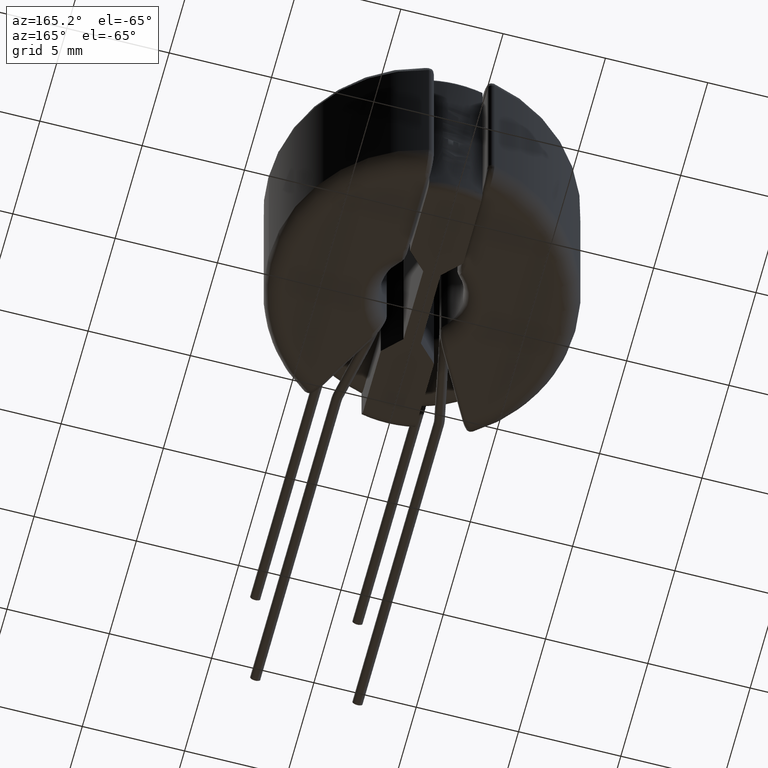
[diagram: clean part render]
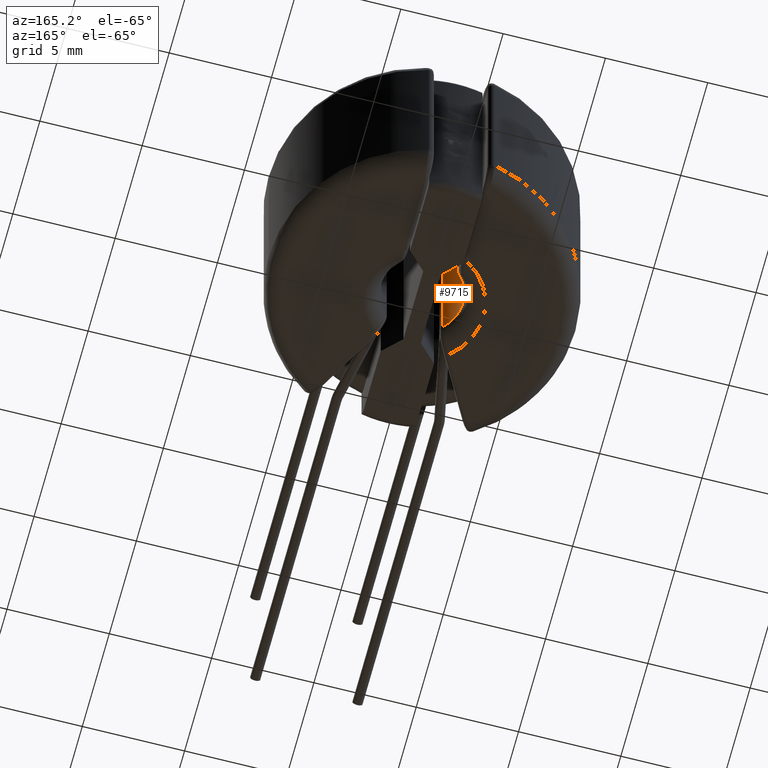
[diagram: same view with one face highlighted and labeled with its STEP entity id]
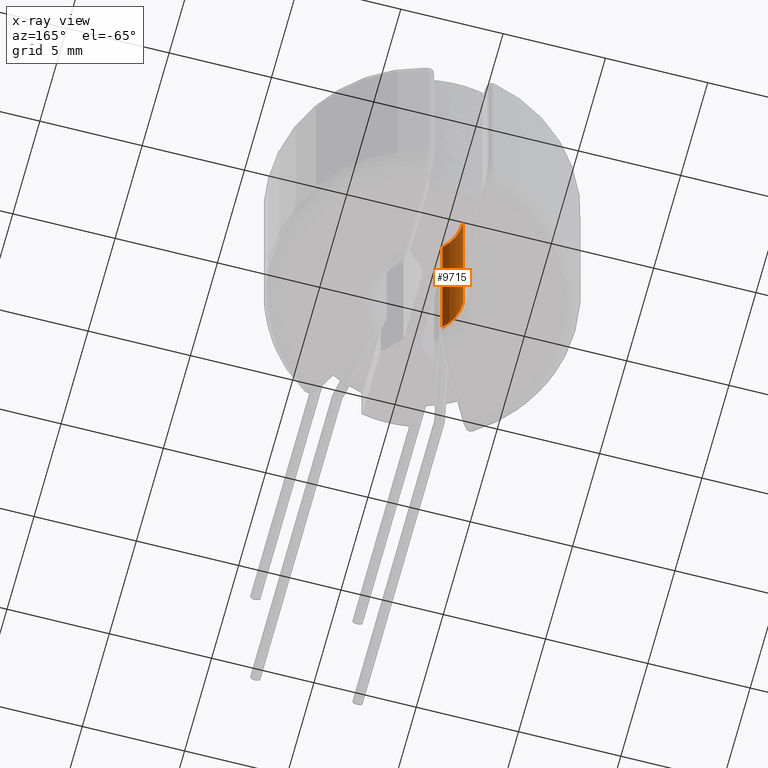
[diagram: x-ray of the same camera — body ghosted, the highlighted face saturated]
A machine part, auxiliary view. The second image highlights one B-rep face of the part: STEP entity #9715.
The next image is the same camera in x-ray: the body ghosted, the highlighted face saturated — about 42% of this face is hidden behind the body in this view.
In plain terms, the highlighted cylindrical surface (partial cylindrical patch) has radius 2 mm, axis along (-0, -0, -1).
Its self-contained STEP definition (entity closure, byte-faithful):
#529 = VERTEX_POINT ( 'NONE', #7103 ) ;
#1133 = EDGE_CURVE ( 'NONE', #2267, #529, #2711, .T. ) ;
#1217 = EDGE_CURVE ( 'NONE', #2267, #8123, #8132, .T. ) ;
#1351 = EDGE_CURVE ( 'NONE', #9964, #8123, #4382, .T. ) ;
#1468 = EDGE_LOOP ( 'NONE', ( #3129, #10241, #1598, #5932 ) ) ;
#1598 = ORIENTED_EDGE ( 'NONE', *, *, #10141, .T. ) ;
#1698 = AXIS2_PLACEMENT_3D ( 'NONE', #3087, #10544, #9821 ) ;
#2085 = CARTESIAN_POINT ( 'NONE',  ( 0.0000000000000000000, 0.0000000000000000000, 5.450000000000000178 ) ) ;
#2267 = VERTEX_POINT ( 'NONE', #2694 ) ;
#2438 = CARTESIAN_POINT ( 'NONE',  ( -1.999999999999999556, 0.0000000000000000000, 5.450000000000000178 ) ) ;
#2694 = CARTESIAN_POINT ( 'NONE',  ( -1.999999999999999556, 0.0000000000000000000, 4.450000000000000178 ) ) ;
#2711 = CIRCLE ( 'NONE', #1698, 1.999999999999999556 ) ;
#2904 = CARTESIAN_POINT ( 'NONE',  ( 0.0000000000000000000, 0.0000000000000000000, -4.449999999999999289 ) ) ;
#3087 = CARTESIAN_POINT ( 'NONE',  ( 0.0000000000000000000, 0.0000000000000000000, 4.450000000000000178 ) ) ;
#3129 = ORIENTED_EDGE ( 'NONE', *, *, #1217, .F. ) ;
#4382 = CIRCLE ( 'NONE', #9610, 1.999999999999999556 ) ;
#4539 = DIRECTION ( 'NONE',  ( 1.000000000000000000, 1.776356839400250465E-15, 0.0000000000000000000 ) ) ;
#4567 = DIRECTION ( 'NONE',  ( -1.000000000000000000, 0.0000000000000000000, 0.0000000000000000000 ) ) ;
#4882 = VECTOR ( 'NONE', #5537, 1000.000000000000000 ) ;
#5537 = DIRECTION ( 'NONE',  ( -0.0000000000000000000, -0.0000000000000000000, -1.000000000000000000 ) ) ;
#5866 = CARTESIAN_POINT ( 'NONE',  ( -1.999999999999999556, 0.0000000000000000000, -4.449999999999999289 ) ) ;
#5932 = ORIENTED_EDGE ( 'NONE', *, *, #1351, .T. ) ;
#6308 = LINE ( 'NONE', #7135, #4882 ) ;
#7103 = CARTESIAN_POINT ( 'NONE',  ( -1.377777777777774659, -1.449733904915565974, 4.450000000000000178 ) ) ;
#7135 = CARTESIAN_POINT ( 'NONE',  ( -1.377777777777774659, -1.449733904915566196, 5.450000000000000178 ) ) ;
#7885 = VECTOR ( 'NONE', #8209, 1000.000000000000000 ) ;
#8123 = VERTEX_POINT ( 'NONE', #5866 ) ;
#8132 = LINE ( 'NONE', #2438, #7885 ) ;
#8209 = DIRECTION ( 'NONE',  ( -0.0000000000000000000, -0.0000000000000000000, -1.000000000000000000 ) ) ;
#8715 = DIRECTION ( 'NONE',  ( -0.0000000000000000000, -0.0000000000000000000, -1.000000000000000000 ) ) ;
#8978 = CARTESIAN_POINT ( 'NONE',  ( -1.377777777777774659, -1.449733904915565974, -4.449999999999999289 ) ) ;
#9281 = FACE_OUTER_BOUND ( 'NONE', #1468, .T. ) ;
#9492 = DIRECTION ( 'NONE',  ( -0.0000000000000000000, -0.0000000000000000000, -1.000000000000000000 ) ) ;
#9610 = AXIS2_PLACEMENT_3D ( 'NONE', #2904, #9492, #4539 ) ;
#9715 = ADVANCED_FACE ( 'NONE', ( #9281 ), #10083, .F. ) ;
#9821 = DIRECTION ( 'NONE',  ( 1.000000000000000000, 0.0000000000000000000, 0.0000000000000000000 ) ) ;
#9964 = VERTEX_POINT ( 'NONE', #8978 ) ;
#10083 = CYLINDRICAL_SURFACE ( 'NONE', #10443, 1.999999999999999556 ) ;
#10141 = EDGE_CURVE ( 'NONE', #529, #9964, #6308, .T. ) ;
#10241 = ORIENTED_EDGE ( 'NONE', *, *, #1133, .T. ) ;
#10443 = AXIS2_PLACEMENT_3D ( 'NONE', #2085, #8715, #4567 ) ;
#10544 = DIRECTION ( 'NONE',  ( 0.0000000000000000000, 0.0000000000000000000, 1.000000000000000000 ) ) ;